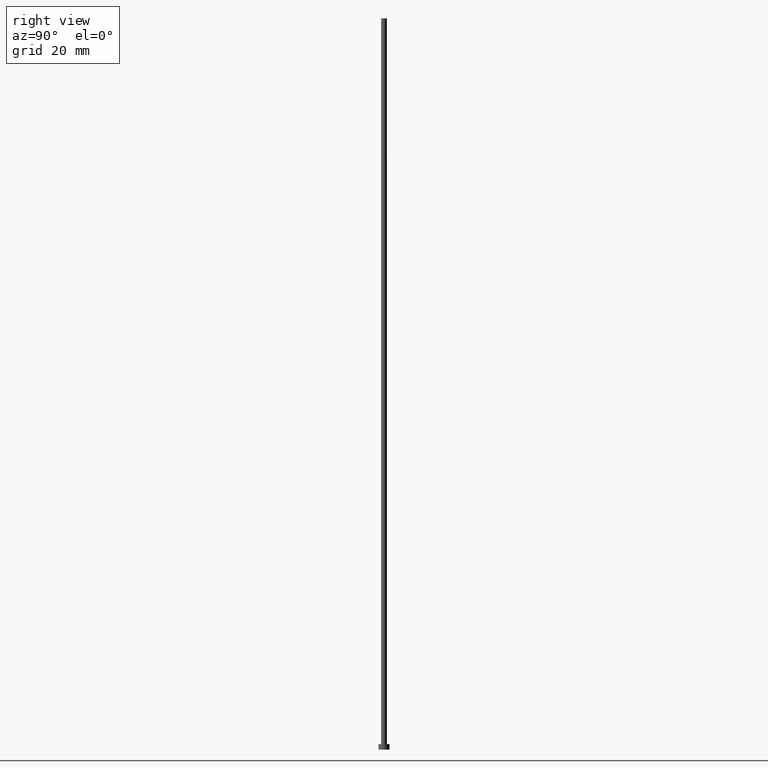
[diagram: clean part render]
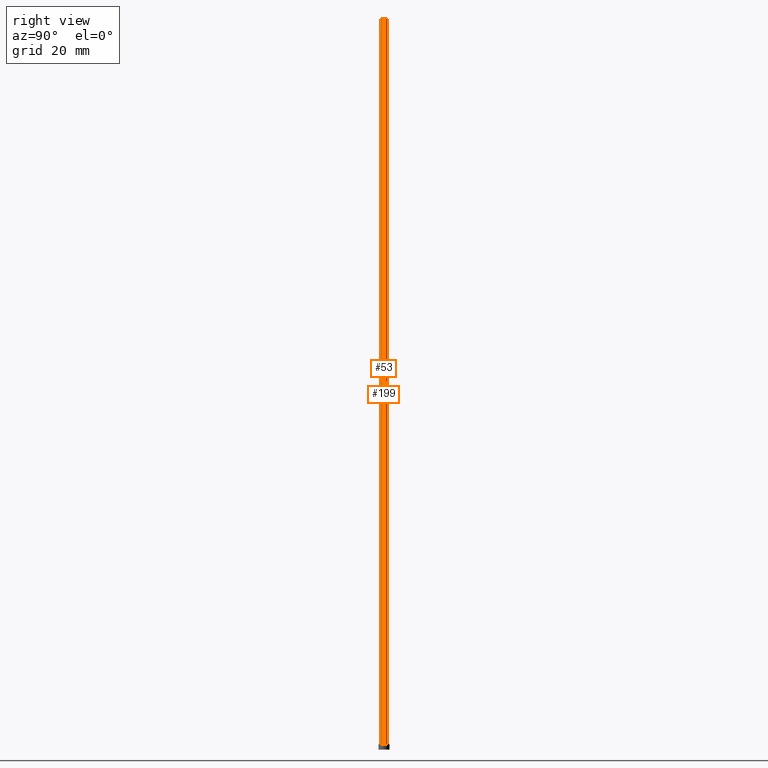
[diagram: same view with one multi-face feature highlighted, each face labeled with its STEP entity id]
A machine part, right view. The highlighted faces form ONE feature: a constant-radius fillet chain: 2 tangent blend faces with common blend radius 0.8 mm. The faces share edges in the B-rep.
Their STEP definitions:
[1] entity #199 (Cylinder):
#14 = DIRECTION ( 'NONE',  ( 1.000000000000000000, 0.000000000000000000, 0.000000000000000000 ) ) ;
#28 = EDGE_CURVE ( 'NONE', #255, #195, #41, .T. ) ;
#33 = CIRCLE ( 'NONE', #163, 0.8000000000000000444 ) ;
#36 = VERTEX_POINT ( 'NONE', #173 ) ;
#39 = CARTESIAN_POINT ( 'NONE',  ( -0.8000000000000000444, 0.000000000000000000, 1.500000000000000000 ) ) ;
#41 = LINE ( 'NONE', #80, #118 ) ;
#43 = ORIENTED_EDGE ( 'NONE', *, *, #246, .F. ) ;
#55 = DIRECTION ( 'NONE',  ( -0.000000000000000000, -0.000000000000000000, -1.000000000000000000 ) ) ;
#73 = LINE ( 'NONE', #156, #101 ) ;
#76 = ORIENTED_EDGE ( 'NONE', *, *, #28, .F. ) ;
#80 = CARTESIAN_POINT ( 'NONE',  ( -0.8000000000000000444, 0.000000000000000000, 200.0000000000000000 ) ) ;
#83 = EDGE_CURVE ( 'NONE', #36, #147, #73, .T. ) ;
#84 = EDGE_LOOP ( 'NONE', ( #43, #108, #177, #76 ) ) ;
#88 = AXIS2_PLACEMENT_3D ( 'NONE', #96, #176, #174 ) ;
#94 = DIRECTION ( 'NONE',  ( -1.000000000000000000, 0.000000000000000000, 0.000000000000000000 ) ) ;
#96 = CARTESIAN_POINT ( 'NONE',  ( 0.000000000000000000, 0.000000000000000000, 1.500000000000000000 ) ) ;
#98 = CARTESIAN_POINT ( 'NONE',  ( 0.000000000000000000, 0.000000000000000000, 200.0000000000000000 ) ) ;
#101 = VECTOR ( 'NONE', #55, 1000.000000000000000 ) ;
#108 = ORIENTED_EDGE ( 'NONE', *, *, #83, .T. ) ;
#109 = AXIS2_PLACEMENT_3D ( 'NONE', #98, #155, #94 ) ;
#118 = VECTOR ( 'NONE', #216, 1000.000000000000000 ) ;
#136 = CARTESIAN_POINT ( 'NONE',  ( 0.000000000000000000, 0.000000000000000000, 200.0000000000000000 ) ) ;
#147 = VERTEX_POINT ( 'NONE', #192 ) ;
#155 = DIRECTION ( 'NONE',  ( -0.000000000000000000, -0.000000000000000000, -1.000000000000000000 ) ) ;
#156 = CARTESIAN_POINT ( 'NONE',  ( 0.8000000000000000444, 9.797174393178826150E-17, 200.0000000000000000 ) ) ;
#162 = CIRCLE ( 'NONE', #88, 0.8000000000000000444 ) ;
#163 = AXIS2_PLACEMENT_3D ( 'NONE', #136, #207, #14 ) ;
#173 = CARTESIAN_POINT ( 'NONE',  ( 0.8000000000000000444, 9.797174393178826150E-17, 200.0000000000000000 ) ) ;
#174 = DIRECTION ( 'NONE',  ( 1.000000000000000000, 0.000000000000000000, 0.000000000000000000 ) ) ;
#176 = DIRECTION ( 'NONE',  ( 0.000000000000000000, 0.000000000000000000, 1.000000000000000000 ) ) ;
#177 = ORIENTED_EDGE ( 'NONE', *, *, #239, .T. ) ;
#184 = CARTESIAN_POINT ( 'NONE',  ( -0.8000000000000000444, 0.000000000000000000, 200.0000000000000000 ) ) ;
#186 = FACE_OUTER_BOUND ( 'NONE', #84, .T. ) ;
#190 = CYLINDRICAL_SURFACE ( 'NONE', #109, 0.8000000000000000444 ) ;
#192 = CARTESIAN_POINT ( 'NONE',  ( 0.8000000000000000444, 9.797174393178826150E-17, 1.500000000000000000 ) ) ;
#195 = VERTEX_POINT ( 'NONE', #39 ) ;
#199 = ADVANCED_FACE ( 'NONE', ( #186 ), #190, .T. ) ;
#207 = DIRECTION ( 'NONE',  ( 0.000000000000000000, 0.000000000000000000, 1.000000000000000000 ) ) ;
#216 = DIRECTION ( 'NONE',  ( -0.000000000000000000, -0.000000000000000000, -1.000000000000000000 ) ) ;
#239 = EDGE_CURVE ( 'NONE', #147, #195, #162, .T. ) ;
#246 = EDGE_CURVE ( 'NONE', #36, #255, #33, .T. ) ;
#255 = VERTEX_POINT ( 'NONE', #184 ) ;
[2] entity #53 (Cylinder):
#3 = CARTESIAN_POINT ( 'NONE',  ( 0.000000000000000000, 0.000000000000000000, 200.0000000000000000 ) ) ;
#8 = AXIS2_PLACEMENT_3D ( 'NONE', #137, #20, #217 ) ;
#15 = CIRCLE ( 'NONE', #8, 0.8000000000000000444 ) ;
#20 = DIRECTION ( 'NONE',  ( 0.000000000000000000, 0.000000000000000000, 1.000000000000000000 ) ) ;
#21 = ORIENTED_EDGE ( 'NONE', *, *, #64, .T. ) ;
#28 = EDGE_CURVE ( 'NONE', #255, #195, #41, .T. ) ;
#32 = ORIENTED_EDGE ( 'NONE', *, *, #187, .F. ) ;
#36 = VERTEX_POINT ( 'NONE', #173 ) ;
#39 = CARTESIAN_POINT ( 'NONE',  ( -0.8000000000000000444, 0.000000000000000000, 1.500000000000000000 ) ) ;
#41 = LINE ( 'NONE', #80, #118 ) ;
#53 = ADVANCED_FACE ( 'NONE', ( #116 ), #125, .T. ) ;
#55 = DIRECTION ( 'NONE',  ( -0.000000000000000000, -0.000000000000000000, -1.000000000000000000 ) ) ;
#61 = DIRECTION ( 'NONE',  ( 1.000000000000000000, 0.000000000000000000, 0.000000000000000000 ) ) ;
#64 = EDGE_CURVE ( 'NONE', #195, #147, #178, .T. ) ;
#73 = LINE ( 'NONE', #156, #101 ) ;
#79 = EDGE_LOOP ( 'NONE', ( #181, #32, #161, #21 ) ) ;
#80 = CARTESIAN_POINT ( 'NONE',  ( -0.8000000000000000444, 0.000000000000000000, 200.0000000000000000 ) ) ;
#83 = EDGE_CURVE ( 'NONE', #36, #147, #73, .T. ) ;
#101 = VECTOR ( 'NONE', #55, 1000.000000000000000 ) ;
#104 = DIRECTION ( 'NONE',  ( -0.000000000000000000, -0.000000000000000000, -1.000000000000000000 ) ) ;
#116 = FACE_OUTER_BOUND ( 'NONE', #79, .T. ) ;
#118 = VECTOR ( 'NONE', #216, 1000.000000000000000 ) ;
#125 = CYLINDRICAL_SURFACE ( 'NONE', #196, 0.8000000000000000444 ) ;
#137 = CARTESIAN_POINT ( 'NONE',  ( 0.000000000000000000, 0.000000000000000000, 200.0000000000000000 ) ) ;
#147 = VERTEX_POINT ( 'NONE', #192 ) ;
#156 = CARTESIAN_POINT ( 'NONE',  ( 0.8000000000000000444, 9.797174393178826150E-17, 200.0000000000000000 ) ) ;
#161 = ORIENTED_EDGE ( 'NONE', *, *, #28, .T. ) ;
#173 = CARTESIAN_POINT ( 'NONE',  ( 0.8000000000000000444, 9.797174393178826150E-17, 200.0000000000000000 ) ) ;
#178 = CIRCLE ( 'NONE', #240, 0.8000000000000000444 ) ;
#179 = DIRECTION ( 'NONE',  ( -1.000000000000000000, 0.000000000000000000, 0.000000000000000000 ) ) ;
#181 = ORIENTED_EDGE ( 'NONE', *, *, #83, .F. ) ;
#184 = CARTESIAN_POINT ( 'NONE',  ( -0.8000000000000000444, 0.000000000000000000, 200.0000000000000000 ) ) ;
#187 = EDGE_CURVE ( 'NONE', #255, #36, #15, .T. ) ;
#192 = CARTESIAN_POINT ( 'NONE',  ( 0.8000000000000000444, 9.797174393178826150E-17, 1.500000000000000000 ) ) ;
#193 = CARTESIAN_POINT ( 'NONE',  ( 0.000000000000000000, 0.000000000000000000, 1.500000000000000000 ) ) ;
#195 = VERTEX_POINT ( 'NONE', #39 ) ;
#196 = AXIS2_PLACEMENT_3D ( 'NONE', #3, #104, #179 ) ;
#216 = DIRECTION ( 'NONE',  ( -0.000000000000000000, -0.000000000000000000, -1.000000000000000000 ) ) ;
#217 = DIRECTION ( 'NONE',  ( 1.000000000000000000, 0.000000000000000000, 0.000000000000000000 ) ) ;
#238 = DIRECTION ( 'NONE',  ( 0.000000000000000000, 0.000000000000000000, 1.000000000000000000 ) ) ;
#240 = AXIS2_PLACEMENT_3D ( 'NONE', #193, #238, #61 ) ;
#255 = VERTEX_POINT ( 'NONE', #184 ) ;